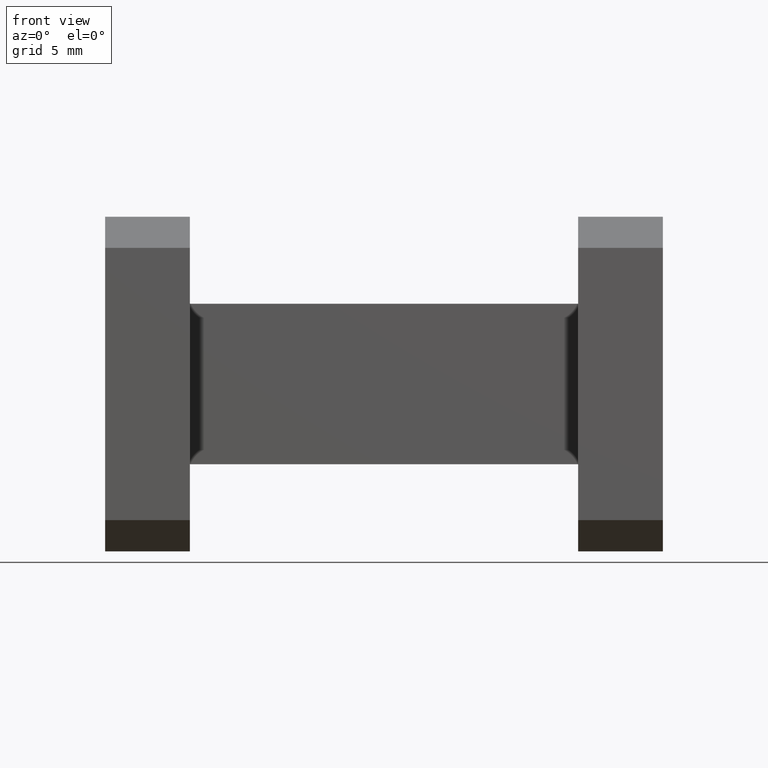
[diagram: clean part render]
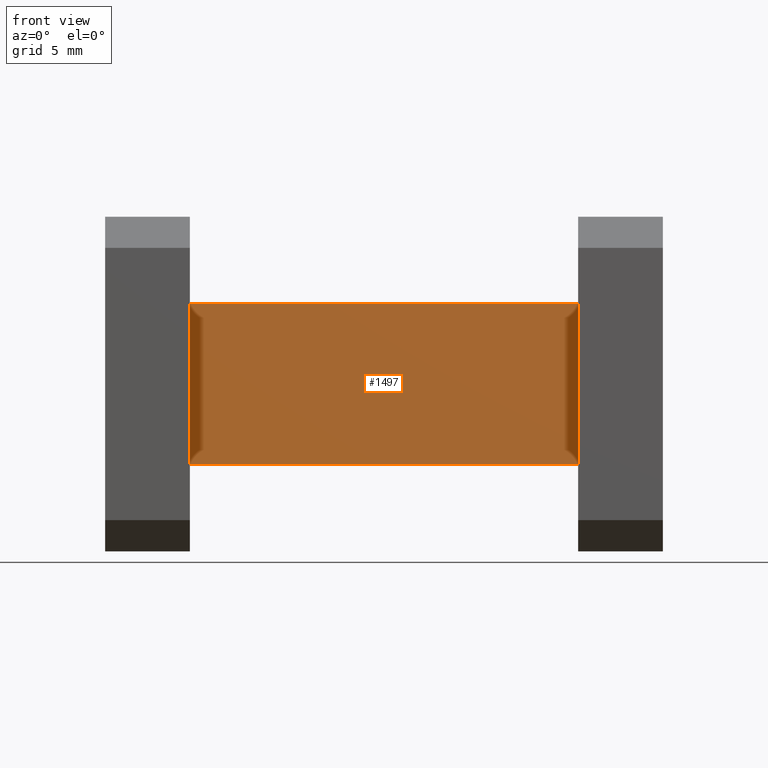
[diagram: same view with one face highlighted and labeled with its STEP entity id]
A machine part, front view. The second image highlights one B-rep face of the part: STEP entity #1497.
In plain terms, the highlighted planar face has unit normal (-0, 1, 0).
Its self-contained STEP definition (entity closure, byte-faithful):
#194 = AXIS2_PLACEMENT_3D ( 'NONE', #1259, #1638, #1267 ) ;
#211 = EDGE_CURVE ( 'NONE', #817, #1139, #572, .T. ) ;
#368 = ORIENTED_EDGE ( 'NONE', *, *, #1126, .T. ) ;
#396 = VECTOR ( 'NONE', #680, 39.37007874015748143 ) ;
#446 = CARTESIAN_POINT ( 'NONE',  ( 1.060000000000000053, -0.1100000000000001116, 0.1800000000000000211 ) ) ;
#452 = CARTESIAN_POINT ( 'NONE',  ( 1.060000000000000053, -0.1100000000000000422, -0.1800000000000000211 ) ) ;
#490 = ORIENTED_EDGE ( 'NONE', *, *, #211, .F. ) ;
#493 = LINE ( 'NONE', #1659, #718 ) ;
#572 = LINE ( 'NONE', #452, #396 ) ;
#646 = VERTEX_POINT ( 'NONE', #980 ) ;
#680 = DIRECTION ( 'NONE',  ( -1.000000000000000000, -0.000000000000000000, -0.000000000000000000 ) ) ;
#718 = VECTOR ( 'NONE', #1395, 39.37007874015748143 ) ;
#755 = ORIENTED_EDGE ( 'NONE', *, *, #1021, .T. ) ;
#769 = CARTESIAN_POINT ( 'NONE',  ( 1.060000000000000053, -0.1100000000000000422, -0.1800000000000000211 ) ) ;
#817 = VERTEX_POINT ( 'NONE', #769 ) ;
#830 = VECTOR ( 'NONE', #992, 39.37007874015748143 ) ;
#839 = LINE ( 'NONE', #1372, #830 ) ;
#863 = PLANE ( 'NONE',  #194 ) ;
#977 = VERTEX_POINT ( 'NONE', #446 ) ;
#980 = CARTESIAN_POINT ( 'NONE',  ( 0.1899999999999999745, -0.1100000000000001116, 0.1800000000000000211 ) ) ;
#992 = DIRECTION ( 'NONE',  ( -1.000000000000000000, -0.000000000000000000, -0.000000000000000000 ) ) ;
#1018 = EDGE_LOOP ( 'NONE', ( #755, #490, #1355, #368 ) ) ;
#1021 = EDGE_CURVE ( 'NONE', #646, #1139, #493, .T. ) ;
#1063 = CARTESIAN_POINT ( 'NONE',  ( 0.1899999999999999745, -0.1100000000000000422, -0.1800000000000000211 ) ) ;
#1126 = EDGE_CURVE ( 'NONE', #977, #646, #839, .T. ) ;
#1139 = VERTEX_POINT ( 'NONE', #1063 ) ;
#1147 = VECTOR ( 'NONE', #1162, 39.37007874015748143 ) ;
#1157 = EDGE_CURVE ( 'NONE', #977, #817, #1431, .T. ) ;
#1162 = DIRECTION ( 'NONE',  ( -0.000000000000000000, 1.897116662266848964E-16, -1.000000000000000000 ) ) ;
#1259 = CARTESIAN_POINT ( 'NONE',  ( 1.060000000000000053, -0.1100000000000000422, -0.1800000000000000211 ) ) ;
#1267 = DIRECTION ( 'NONE',  ( 0.000000000000000000, -1.897116662266848964E-16, 1.000000000000000000 ) ) ;
#1304 = CARTESIAN_POINT ( 'NONE',  ( 1.060000000000000053, -0.1100000000000000422, -0.1800000000000000211 ) ) ;
#1355 = ORIENTED_EDGE ( 'NONE', *, *, #1157, .F. ) ;
#1372 = CARTESIAN_POINT ( 'NONE',  ( 1.060000000000000053, -0.1100000000000001116, 0.1800000000000000211 ) ) ;
#1395 = DIRECTION ( 'NONE',  ( -0.000000000000000000, 1.897116662266848964E-16, -1.000000000000000000 ) ) ;
#1431 = LINE ( 'NONE', #1304, #1147 ) ;
#1497 = ADVANCED_FACE ( 'NONE', ( #1620 ), #863, .F. ) ;
#1620 = FACE_OUTER_BOUND ( 'NONE', #1018, .T. ) ;
#1638 = DIRECTION ( 'NONE',  ( -0.000000000000000000, 1.000000000000000000, 1.897116662266848964E-16 ) ) ;
#1659 = CARTESIAN_POINT ( 'NONE',  ( 0.1899999999999999745, -0.1100000000000000422, -0.1800000000000000211 ) ) ;